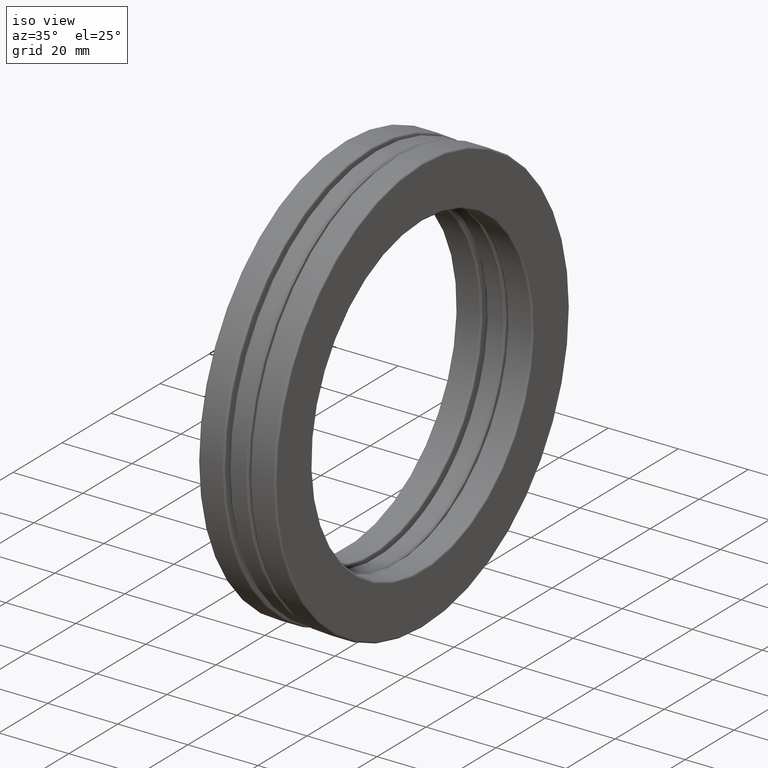
[diagram: clean part render]
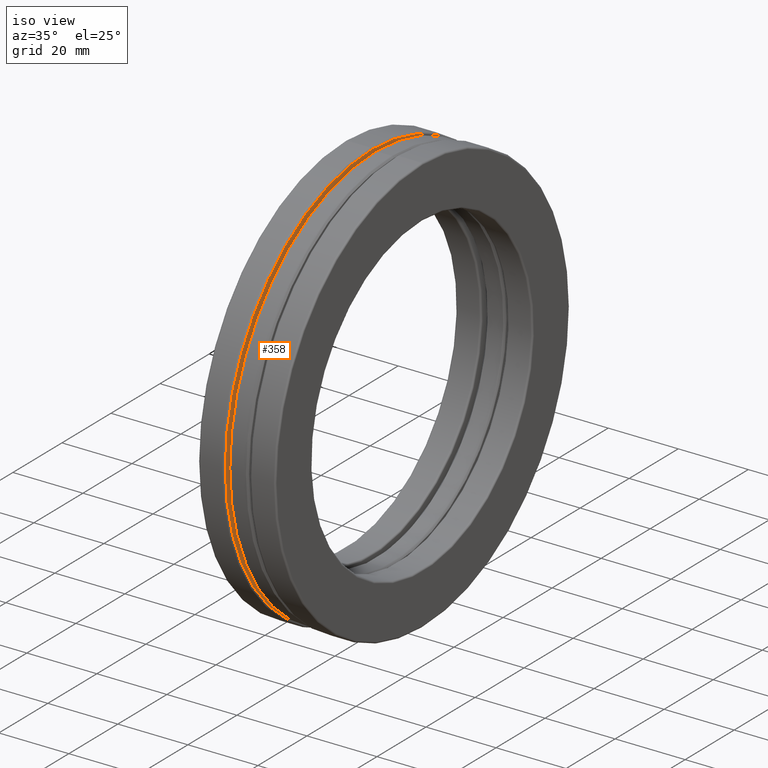
[diagram: same view with one face highlighted and labeled with its STEP entity id]
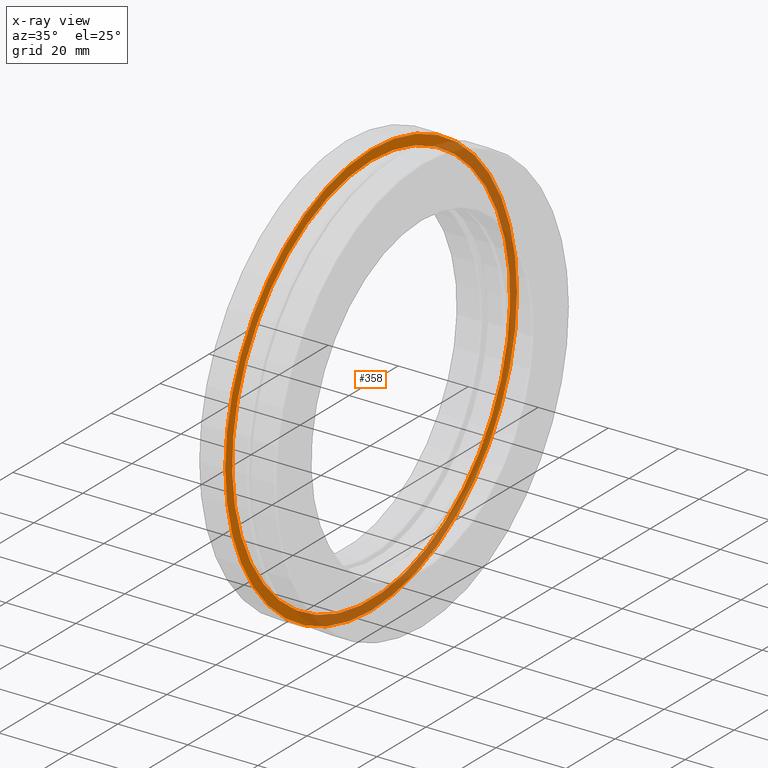
[diagram: x-ray of the same camera — body ghosted, the highlighted face saturated]
A machine part, iso view. The second image highlights one B-rep face of the part: STEP entity #358.
The next image is the same camera in x-ray: the body ghosted, the highlighted face saturated — about 41% of this face is hidden behind the body in this view.
In plain terms, the highlighted planar face has unit normal (1, 0, 0).
Its self-contained STEP definition (entity closure, byte-faithful):
#44 = CARTESIAN_POINT ( 'NONE',  ( -0.1443362199999998200, 0.0000000000000000000, 0.0000000000000000000 ) ) ;
#55 = AXIS2_PLACEMENT_3D ( 'NONE', #503, #800, #797 ) ;
#85 = EDGE_CURVE ( 'NONE', #636, #636, #160, .T. ) ;
#86 = CIRCLE ( 'NONE', #312, 2.231455967093216600 ) ;
#98 = FACE_OUTER_BOUND ( 'NONE', #818, .T. ) ;
#152 = EDGE_CURVE ( 'NONE', #359, #359, #86, .T. ) ;
#160 = CIRCLE ( 'NONE', #55, 2.342000000000000500 ) ;
#163 = ORIENTED_EDGE ( 'NONE', *, *, #85, .F. ) ;
#297 = CARTESIAN_POINT ( 'NONE',  ( -0.1443362199999998500, 0.0000000000000000000, 2.342000000000000500 ) ) ;
#312 = AXIS2_PLACEMENT_3D ( 'NONE', #44, #624, #802 ) ;
#326 = AXIS2_PLACEMENT_3D ( 'NONE', #391, #453, #821 ) ;
#358 = ADVANCED_FACE ( 'NONE', ( #807, #98 ), #766, .T. ) ;
#359 = VERTEX_POINT ( 'NONE', #366 ) ;
#366 = CARTESIAN_POINT ( 'NONE',  ( -0.1443362199999998200, 0.0000000000000000000, 2.231455967093216600 ) ) ;
#391 = CARTESIAN_POINT ( 'NONE',  ( -0.1443362199999997700, -1.790665817529892900E-017, 0.0000000000000000000 ) ) ;
#394 = EDGE_LOOP ( 'NONE', ( #659 ) ) ;
#453 = DIRECTION ( 'NONE',  ( 1.000000000000000000, 0.0000000000000000000, 0.0000000000000000000 ) ) ;
#503 = CARTESIAN_POINT ( 'NONE',  ( -0.1443362199999998500, 0.0000000000000000000, 0.0000000000000000000 ) ) ;
#624 = DIRECTION ( 'NONE',  ( -1.000000000000000000, -0.0000000000000000000, -0.0000000000000000000 ) ) ;
#636 = VERTEX_POINT ( 'NONE', #297 ) ;
#659 = ORIENTED_EDGE ( 'NONE', *, *, #152, .T. ) ;
#766 = PLANE ( 'NONE',  #326 ) ;
#797 = DIRECTION ( 'NONE',  ( 0.0000000000000000000, 0.0000000000000000000, 1.000000000000000000 ) ) ;
#800 = DIRECTION ( 'NONE',  ( -1.000000000000000000, -0.0000000000000000000, -0.0000000000000000000 ) ) ;
#802 = DIRECTION ( 'NONE',  ( 0.0000000000000000000, 0.0000000000000000000, 1.000000000000000000 ) ) ;
#807 = FACE_BOUND ( 'NONE', #394, .T. ) ;
#818 = EDGE_LOOP ( 'NONE', ( #163 ) ) ;
#821 = DIRECTION ( 'NONE',  ( 0.0000000000000000000, 0.0000000000000000000, -1.000000000000000000 ) ) ;